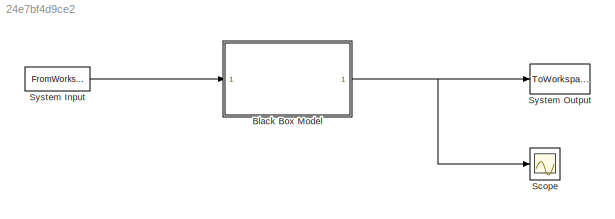
MODEL slx_24e7bf4d9ce2
KIND model
CONFIG AbsTol = auto
CONFIG EnableMultiTasking = off
CONFIG FixedStep = Ts
CONFIG MaxStep = auto
CONFIG MinStep = auto
CONFIG RelTol = 1e-3
CONFIG SampleTimeConstraint = Unconstrained
CONFIG Solver = ode8
CONFIG SolverName = ode8
CONFIG StartTime = 0.0
CONFIG StopTime = (N-1)*Ts
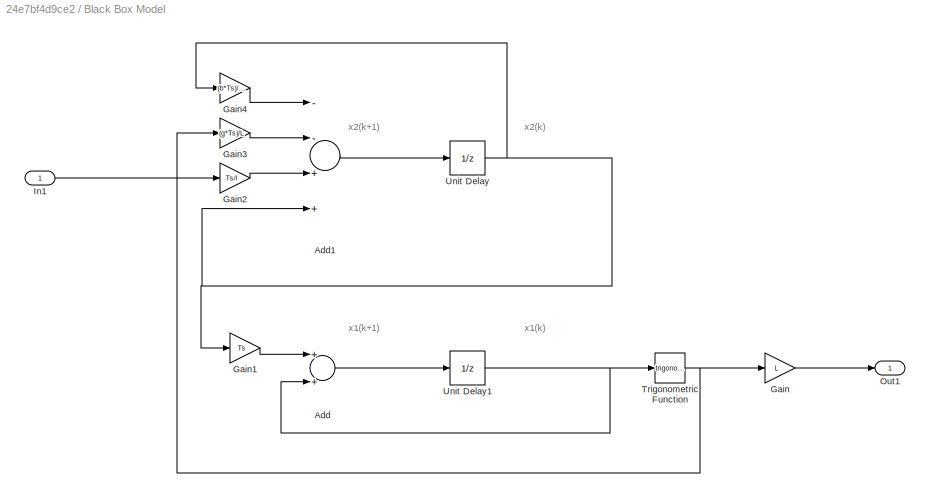
BLOCK [SubSystem] Black Box Model 
  Ports = [1, 1]
  RequestExecContextInheritance = off
BLOCK [Sum] Black Box Model /Add
  InputSameDT = off
  OutDataTypeStr = Inherit: Inherit via internal rule
  Ports = [2, 1]
  SaturateOnIntegerOverflow = off
BLOCK [Sum] Black Box Model /Add1
  InputSameDT = off
  Inputs = --++
  OutDataTypeStr = Inherit: Inherit via internal rule
  Ports = [4, 1]
  SaturateOnIntegerOverflow = off
BLOCK [Gain] Black Box Model /Gain
  Gain = L
  OutDataTypeStr = Inherit: Inherit via internal rule
  ParamDataTypeStr = Inherit: Inherit via internal rule
  SaturateOnIntegerOverflow = off
BLOCK [Gain] Black Box Model /Gain1
  Gain = Ts
  OutDataTypeStr = Inherit: Inherit via internal rule
  ParamDataTypeStr = Inherit: Inherit via internal rule
  SaturateOnIntegerOverflow = off
BLOCK [Gain] Black Box Model /Gain2
  Gain = Ts/I
  OutDataTypeStr = Inherit: Inherit via internal rule
  ParamDataTypeStr = Inherit: Inherit via internal rule
  SaturateOnIntegerOverflow = off
BLOCK [Gain] Black Box Model /Gain3
  Gain = (g*Ts)/L
  OutDataTypeStr = Inherit: Inherit via internal rule
  ParamDataTypeStr = Inherit: Inherit via internal rule
  SaturateOnIntegerOverflow = off
BLOCK [Gain] Black Box Model /Gain4
  Gain = (b*Ts)/(m*L)
  OutDataTypeStr = Inherit: Inherit via internal rule
  ParamDataTypeStr = Inherit: Inherit via internal rule
  SaturateOnIntegerOverflow = off
BLOCK [Inport] Black Box Model /In1
  IconDisplay = Port number
BLOCK [Outport] Black Box Model /Out1
  IconDisplay = Port number
BLOCK [Trigonometry] Black Box Model /Trigonometric Function
  Ports = [1, 1]
BLOCK [UnitDelay] Black Box Model /Unit Delay
  HasFrameUpgradeWarning = on
  SampleTime = Ts
BLOCK [UnitDelay] Black Box Model /Unit Delay1
  HasFrameUpgradeWarning = on
  SampleTime = Ts
BLOCK [Scope] Scope
  Floating = off
  NumInputPorts = 1
  Ports = [1]
  ScopeSpecificationString = Simulink.scopes.TimeScopeBlockCfg('CurrentConfiguration', extmgr.ConfigurationSet(extmgr.Configuration('Core','General UI',true),extmgr.Configuration('Core','Source UI',true),extmgr.Configuration('Sources','WiredSimulink',true),extmgr.Configuration('Visuals','Time Domain',true,'SerializedDisplays',{struct('MinYLimReal','-0.2749','MaxYLimReal','0.31408','YLabelReal','','MinYLimMag','0.00000','MaxYL...<+1365ch>
BLOCK [FromWorkspace] System Input
  SampleTime = Ts
  VariableName = sysIn
  ZeroCross = on
BLOCK [ToWorkspace] System Output
  MaxDataPoints = inf
  Ports = [1]
  SampleTime = Ts
  Save2DSignal = 2-D array (concatenate along first dimension)
  VariableName = sysOut
ANNOTATION Black Box Model : x1(k)
ANNOTATION Black Box Model : x1(k+1)
ANNOTATION Black Box Model : x2(k)
ANNOTATION Black Box Model : x2(k+1)
LINE Black Box Model /Add1:1 -> Black Box Model /Unit Delay:1
LINE Black Box Model /Add:1 -> Black Box Model /Unit Delay1:1
LINE Black Box Model /Gain1:1 -> Black Box Model /Add:1
LINE Black Box Model /Gain2:1 -> Black Box Model /Add1:3
LINE Black Box Model /Gain3:1 -> Black Box Model /Add1:2
LINE Black Box Model /Gain4:1 -> Black Box Model /Add1:1
LINE Black Box Model /Gain:1 -> Black Box Model /Out1:1
LINE Black Box Model /In1:1 -> Black Box Model /Gain2:1
NET Black Box Model /Trigonometric Function:1 -> Black Box Model /Gain3:1, Black Box Model /Gain:1
NET Black Box Model /Unit Delay1:1 -> Black Box Model /Add:2, Black Box Model /Trigonometric Function:1
NET Black Box Model /Unit Delay:1 -> Black Box Model /Add1:4, Black Box Model /Gain1:1, Black Box Model /Gain4:1
NET Black Box Model :1 -> Scope:1, System Output:1
LINE System Input:1 -> Black Box Model :1
note: NET lines group one-source signal fan-out (src -> all destinations, sorted); 1:1 wires keep LINE
